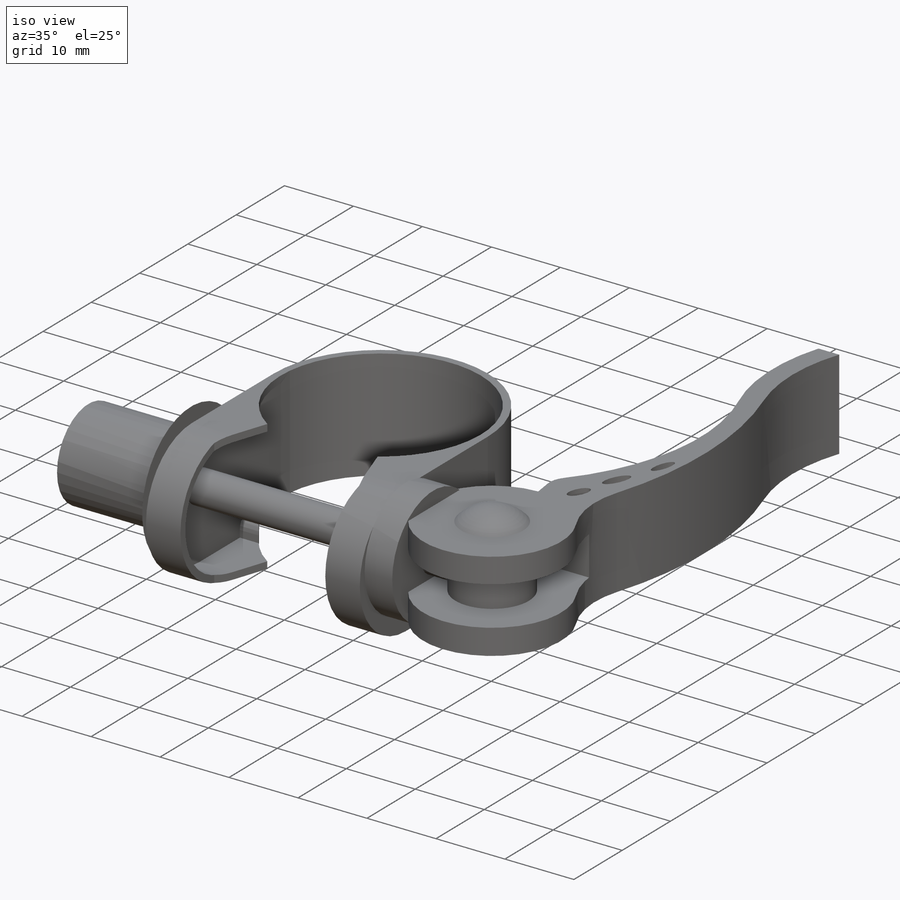
[diagram: iso view]
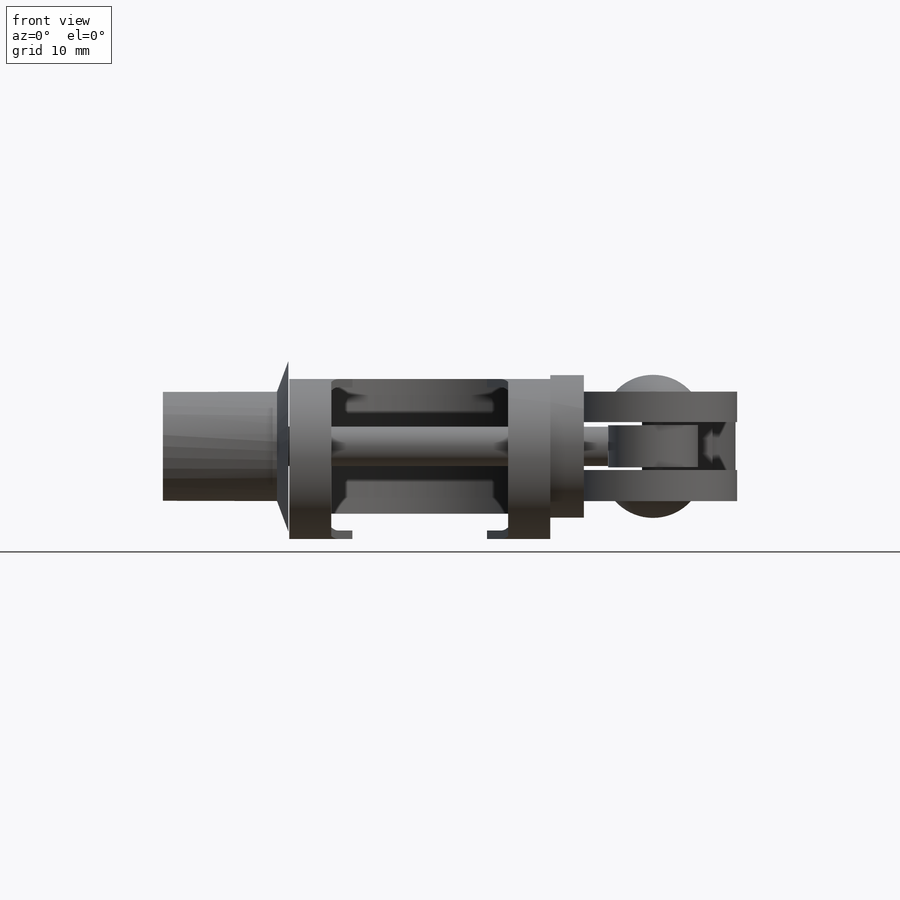
[diagram: front view]
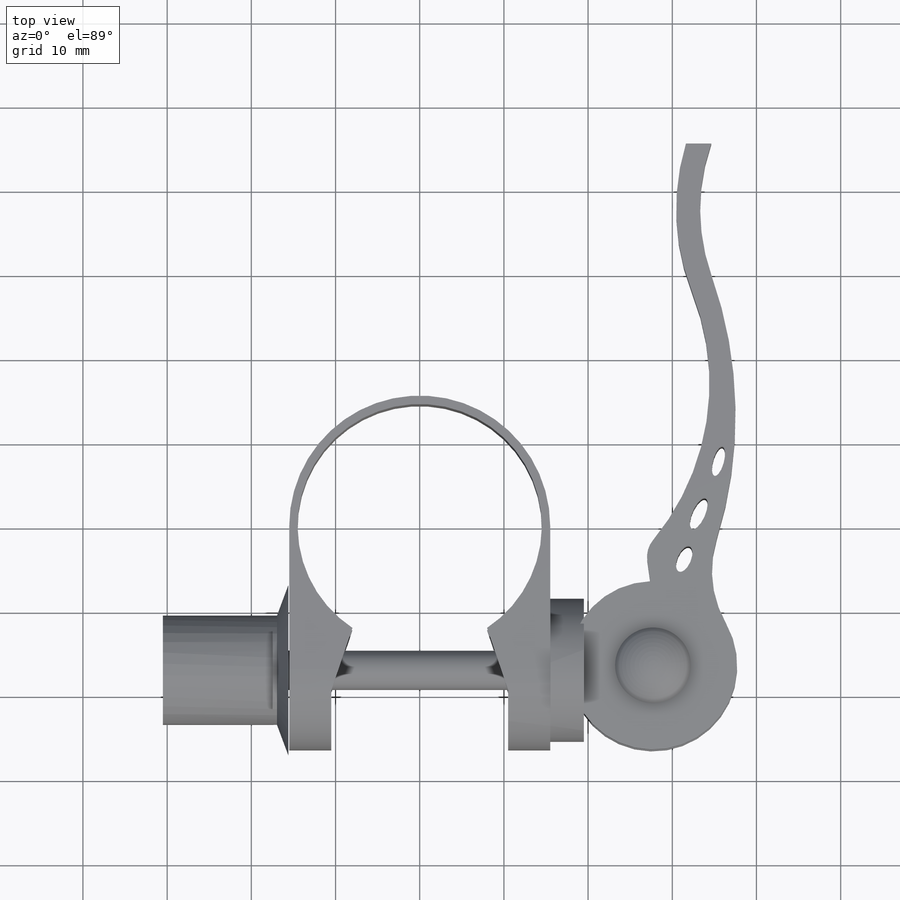
[diagram: top view]
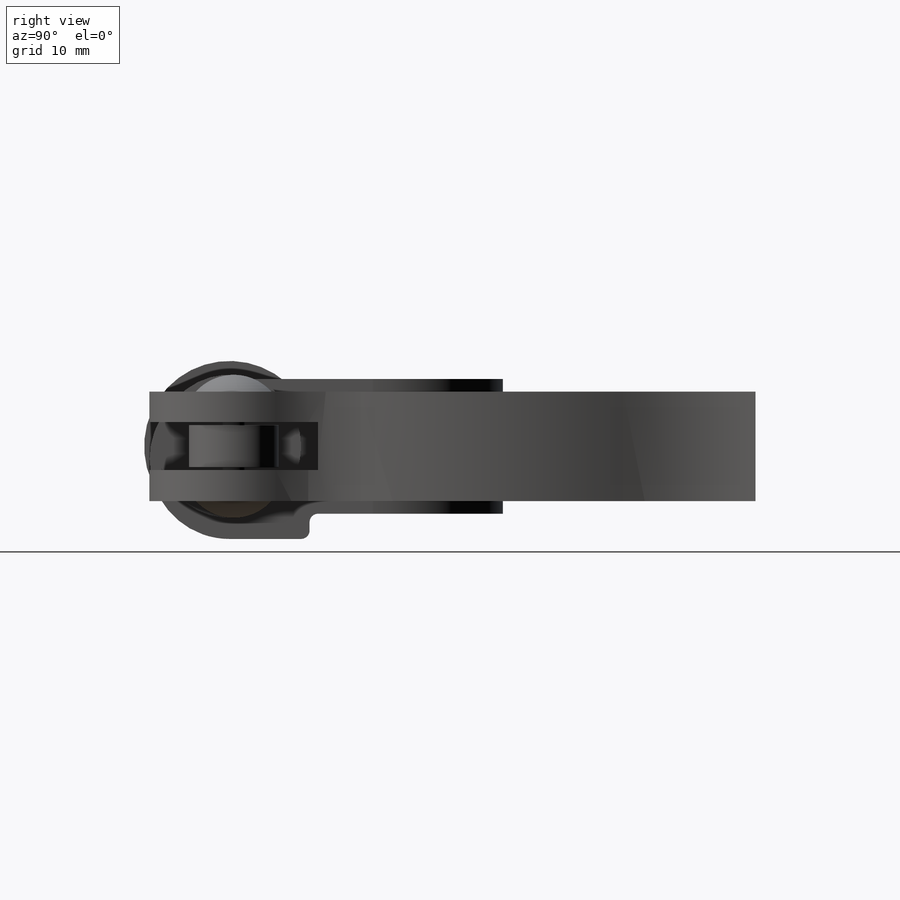
[diagram: right view]
SOLIDWORKS PART (.sldprt)
format: sldprt  version: not decoded by parser v0  size: 446,464 bytes
history: native  units: mm
features: sketch x12, plane x5, extrude x5, cut_extrude x5, revolve x2, material x1, mirror x1, fillet x1, shell x1 (+10 scaffold rows collapsed)
feature tree (43):
  scaffold x10  (default folders/planes/origin — collapsed)
  material  "材質 <未指定>"
  plane  "前基準面"
  plane  "上基準面"
  plane  "右基準面"
  sketch  "草圖1"  dims[c1.D1=31.0mm c1.D7=28.0mm c1.D9=29.0mm c1.D3=5.0mm c1.D4=5.0mm c1.D5=7.0mm c1.D6=7.0mm c2.D7=42.0mm c2.D8=16.0mm c2.D2=1.0mm]
  extrude  "填料-伸長2"  Depth=16mm
  sketch  "草圖2"  dims[D1=19.0mm D2=11.0mm]
  cut_extrude  "除料-伸長1"  Depth=44mm
  extrude  "填料-伸長5"  [1 undecoded]
  sketch  "草圖2<5>"
  mirror  "鏡射2"
  sketch  "草圖3"  dims[D1=0.0mm]
  cut_extrude  "除料-伸長2"  [1 undecoded]
  fillet  "圓角3"  Radius=1mm
  shell  "薄殼1"  Thickness=1mm
  sketch  "草圖4"  dims[D1=17.0mm D2=9.5mm]
  extrude  "填料-伸長6"  Depth=4mm
  plane  "平面1"
  sketch  "草圖6"  dims[c1.D1=20.0mm c1.D5=3.0mm c1.D6=~12.698651mm c1.D7=~49.393589mm c1.D8=~29.330156mm c1.D2=~4.234301mm c1.D3=~5.020856mm c1.D4=3.0mm c2.D7=~19.691732mm c2.D8=~2.291339mm c2.D9=~12.935643mm c2.D10=~33.536834mm c2.D11=~33.536834mm c2.D12=~29.761182mm c2.D13=~29.761182mm c2.D14=~54.209315mm]
  extrude  "填料-伸長7"  Depth=13mm
  sketch  "草圖7"
  cut_extrude  "除料-伸長3"  [1 undecoded]
  sketch  "草圖8"
  cut_extrude  "除料-伸長4"  [1 undecoded]
  sketch  "草圖9"  dims[c1.D1=15.0mm c1.D2=13.0mm c2.D1=15.0mm]
  revolve  "旋轉1"  Angle=360deg
  sketch  "草圖10"
  extrude  "填料-伸長8"  Depth=5mm
  plane  "平面2"
  sketch  "草圖12"  dims[D1=9.0mm D2=2.0mm]
  revolve  "旋轉3"  Angle=360deg
  sketch  "草圖13"
  cut_extrude  "除料-伸長5"  Depth=20mm
decode coverage: 17 of 27 modeling features carry decoded parameters
note: ~ marks probable driven/reference dimensions
note: 4 parameter values undecoded
summary: no parameter record found for 4 features
note: suppression state not decoded; provenance and decode notes live in map.json
